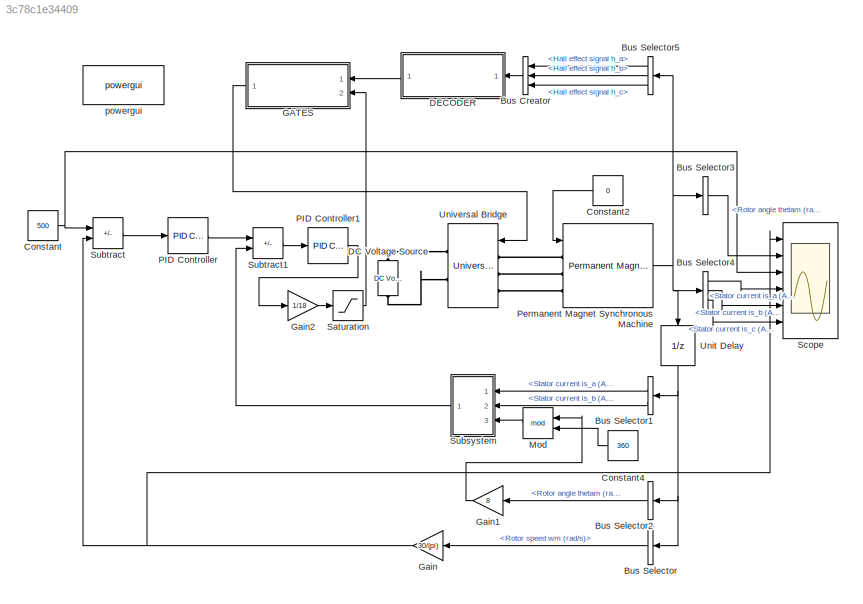
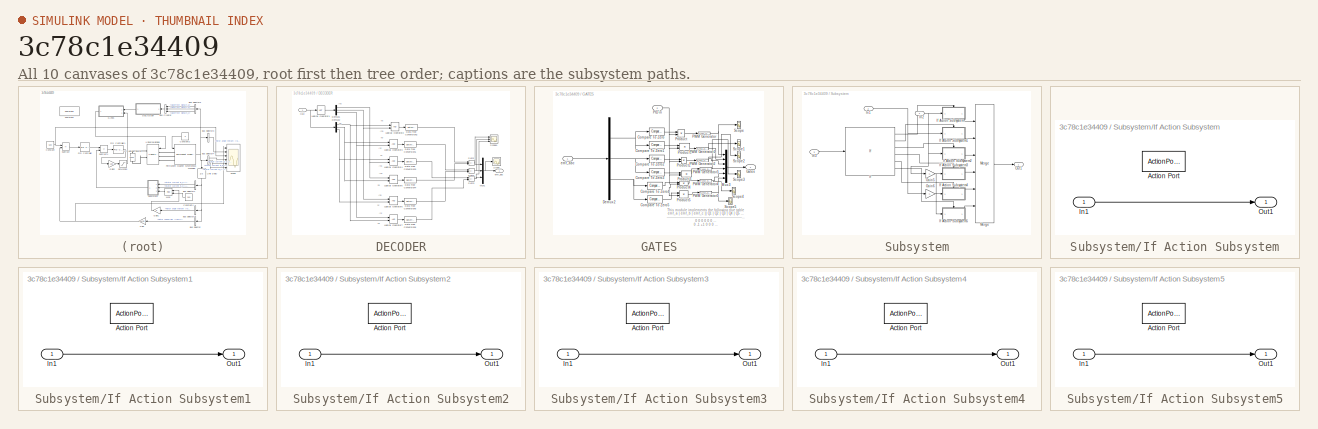
[diagram: thumbnail index - all 10 canvases of the model, root first then tree order]
MODEL slx_3c78c1e34409
KIND model
CONFIG AbsTol = auto
CONFIG EnableMultiTasking = off
CONFIG FixedStep = auto
CONFIG MaxStep = auto
CONFIG MinStep = auto
CONFIG RelTol = 1e-3
CONFIG SampleTimeConstraint = Unconstrained
CONFIG Solver = VariableStepAuto
CONFIG SolverName = VariableStepAuto
CONFIG StartTime = 0.0
CONFIG StopTime = 3
BLOCK [BusCreator] Bus Creator
  DisplayOption = bar
  InheritFromInputs = on
  Inputs = 3
  Ports = [3, 1]
BLOCK [BusSelector] Bus Selector
  OutputSignals = Rotor speed wm (rad/s)
  Ports = [1, 1]
BLOCK [BusSelector] Bus Selector1
  OutputSignals = Stator current is_a (A),Stator current is_b (A)
  Ports = [1, 2]
BLOCK [BusSelector] Bus Selector2
  OutputSignals = Rotor angle thetam (rad)
  Ports = [1, 1]
BLOCK [BusSelector] Bus Selector3
  OutputSignals = Rotor angle thetam (rad)
  Ports = [1, 1]
BLOCK [BusSelector] Bus Selector4
  OutputSignals = Stator current is_a (A),Stator current is_b (A),Stator current is_c (A)
  Ports = [1, 3]
BLOCK [BusSelector] Bus Selector5
  OutputSignals = Hall effect signal h_a,Hall effect signal h_b,Hall effect signal h_c
  Ports = [1, 3]
BLOCK [Constant] Constant
  Value = 500
BLOCK [Constant] Constant2
  Value = 0
BLOCK [Constant] Constant4
  Value = 360
BLOCK [Reference] DC Voltage Source  REF=powerlib/Electrical
Sources/DC Voltage Source
  Ports = [0, 0, 0, 0, 0, 1, 1]
  SourceBlock = powerlib/Electrical\nSources/DC Voltage Source
  SourceProductBaseCode = PS
  SourceType = DC Voltage Source
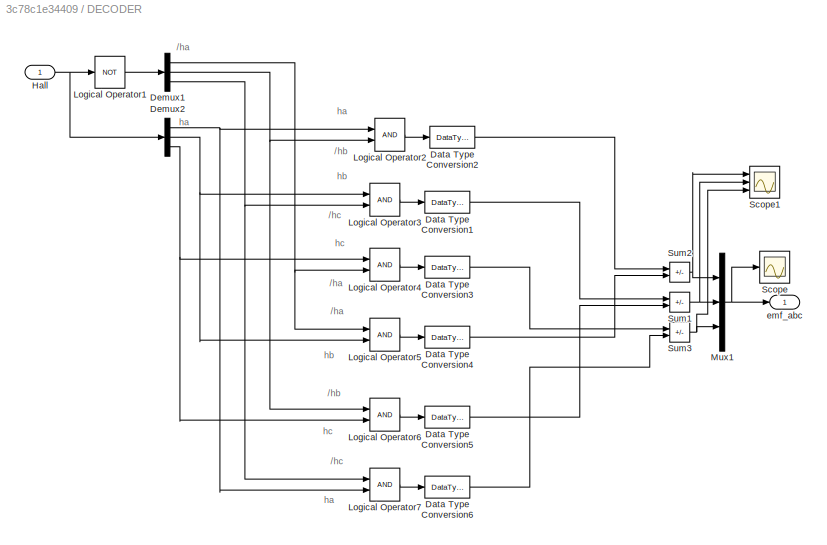
BLOCK [SubSystem] DECODER
  Ports = [1, 1]
  RequestExecContextInheritance = off
BLOCK [DataTypeConversion] DECODER/Data Type Conversion1
  RndMeth = Floor
  SaturateOnIntegerOverflow = off
BLOCK [DataTypeConversion] DECODER/Data Type Conversion2
  RndMeth = Floor
  SaturateOnIntegerOverflow = off
BLOCK [DataTypeConversion] DECODER/Data Type Conversion3
  RndMeth = Floor
  SaturateOnIntegerOverflow = off
BLOCK [DataTypeConversion] DECODER/Data Type Conversion4
  RndMeth = Floor
  SaturateOnIntegerOverflow = off
BLOCK [DataTypeConversion] DECODER/Data Type Conversion5
  RndMeth = Floor
  SaturateOnIntegerOverflow = off
BLOCK [DataTypeConversion] DECODER/Data Type Conversion6
  RndMeth = Floor
  SaturateOnIntegerOverflow = off
BLOCK [Demux] DECODER/Demux1
  Outputs = 3
  Ports = [1, 3]
BLOCK [Demux] DECODER/Demux2
  Outputs = 3
  Ports = [1, 3]
BLOCK [Inport] DECODER/Hall 
BLOCK [Logic] DECODER/Logical Operator1
  AllPortsSameDT = off
  Operator = NOT
  OutDataTypeStr = boolean
  Ports = [1, 1]
BLOCK [Logic] DECODER/Logical Operator2
  AllPortsSameDT = off
  OutDataTypeStr = boolean
  Ports = [2, 1]
BLOCK [Logic] DECODER/Logical Operator3
  AllPortsSameDT = off
  OutDataTypeStr = boolean
  Ports = [2, 1]
BLOCK [Logic] DECODER/Logical Operator4
  AllPortsSameDT = off
  OutDataTypeStr = boolean
  Ports = [2, 1]
BLOCK [Logic] DECODER/Logical Operator5
  AllPortsSameDT = off
  OutDataTypeStr = boolean
  Ports = [2, 1]
BLOCK [Logic] DECODER/Logical Operator6
  AllPortsSameDT = off
  OutDataTypeStr = boolean
  Ports = [2, 1]
BLOCK [Logic] DECODER/Logical Operator7
  AllPortsSameDT = off
  OutDataTypeStr = boolean
  Ports = [2, 1]
BLOCK [Mux] DECODER/Mux1
  DisplayOption = bar
  Inputs = 3
  Ports = [3, 1]
BLOCK [Scope] DECODER/Scope
  Floating = off
  NumInputPorts = 1
  Ports = [1]
  ScopeSpecificationString = Simulink.scopes.TimeScopeBlockCfg('CurrentConfiguration', extmgr.ConfigurationSet(extmgr.Configuration('Core','General UI',true),extmgr.Configuration('Core','Source UI',true),extmgr.Configuration('Sources','WiredSimulink',true,'DataLoggingVariableName','ScopeData4'),extmgr.Configuration('Visuals','Time Domain',true),extmgr.Configuration('Tools','Plot Navigation',true),extmgr.Configuration('Tools',...<+40ch>
BLOCK [Scope] DECODER/Scope1
  Floating = off
  NumInputPorts = 3
  Ports = [3]
  ScopeSpecificationString = Simulink.scopes.TimeScopeBlockCfg('CurrentConfiguration', extmgr.ConfigurationSet(extmgr.Configuration('Core','General UI',true),extmgr.Configuration('Core','Source UI',true),extmgr.Configuration('Sources','WiredSimulink',true,'DataLoggingVariableName','ScopeData5'),extmgr.Configuration('Visuals','Time Domain',true,'SerializedDisplays',{struct('MinYLimReal','-1.25','MaxYLimReal','1.25','YLabelReal...<+2618ch>
BLOCK [Sum] DECODER/Sum1
  IconShape = rectangular
  Inputs = +-
  OutDataTypeStr = double
  Ports = [2, 1]
BLOCK [Sum] DECODER/Sum2
  IconShape = rectangular
  Inputs = +-
  OutDataTypeStr = double
  Ports = [2, 1]
BLOCK [Sum] DECODER/Sum3
  IconShape = rectangular
  Inputs = +-
  OutDataTypeStr = double
  Ports = [2, 1]
BLOCK [Outport] DECODER/emf_abc
  VectorParamsAs1DForOutWhenUnconnected = off
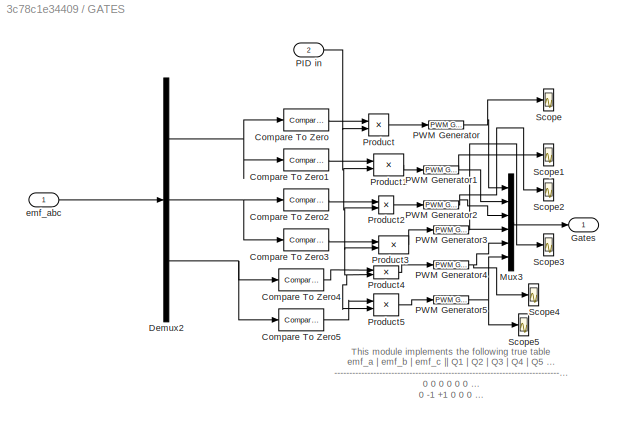
BLOCK [SubSystem] GATES
  Ports = [2, 1]
  RequestExecContextInheritance = off
BLOCK [Reference] GATES/Compare To Zero  REF=simulink/Logic and Bit
Operations/Compare
To Zero
  Ports = [1, 1]
  SourceBlock = simulink/Logic and Bit\nOperations/Compare\nTo Zero
  SourceProductBaseCode = SL
  SourceType = Compare To Zero
BLOCK [Reference] GATES/Compare To Zero1  REF=simulink/Logic and Bit
Operations/Compare
To Zero
  Ports = [1, 1]
  SourceBlock = simulink/Logic and Bit\nOperations/Compare\nTo Zero
  SourceProductBaseCode = SL
  SourceType = Compare To Zero
BLOCK [Reference] GATES/Compare To Zero2  REF=simulink/Logic and Bit
Operations/Compare
To Zero
  Ports = [1, 1]
  SourceBlock = simulink/Logic and Bit\nOperations/Compare\nTo Zero
  SourceProductBaseCode = SL
  SourceType = Compare To Zero
BLOCK [Reference] GATES/Compare To Zero3  REF=simulink/Logic and Bit
Operations/Compare
To Zero
  Ports = [1, 1]
  SourceBlock = simulink/Logic and Bit\nOperations/Compare\nTo Zero
  SourceProductBaseCode = SL
  SourceType = Compare To Zero
BLOCK [Reference] GATES/Compare To Zero4  REF=simulink/Logic and Bit
Operations/Compare
To Zero
  Ports = [1, 1]
  SourceBlock = simulink/Logic and Bit\nOperations/Compare\nTo Zero
  SourceProductBaseCode = SL
  SourceType = Compare To Zero
BLOCK [Reference] GATES/Compare To Zero5  REF=simulink/Logic and Bit
Operations/Compare
To Zero
  Ports = [1, 1]
  SourceBlock = simulink/Logic and Bit\nOperations/Compare\nTo Zero
  SourceProductBaseCode = SL
  SourceType = Compare To Zero
BLOCK [Demux] GATES/Demux2
  Outputs = 3
  Ports = [1, 3]
BLOCK [Outport] GATES/Gates
  VectorParamsAs1DForOutWhenUnconnected = off
BLOCK [Mux] GATES/Mux3
  DisplayOption = bar
  Inputs = 6
  Ports = [6, 1]
BLOCK [Inport] GATES/PID in 
  Port = 2
BLOCK [Reference] GATES/PWM Generator  REF=eePwmGenerator/PWM Generator
  Ports = [1, 1]
  SourceBlock = eePwmGenerator/PWM Generator
  SourceProductBaseCode = PS
  SourceType = PWM Generator
BLOCK [Reference] GATES/PWM Generator1  REF=eePwmGenerator/PWM Generator
  Ports = [1, 1]
  SourceBlock = eePwmGenerator/PWM Generator
  SourceProductBaseCode = PS
  SourceType = PWM Generator
BLOCK [Reference] GATES/PWM Generator2  REF=eePwmGenerator/PWM Generator
  Ports = [1, 1]
  SourceBlock = eePwmGenerator/PWM Generator
  SourceProductBaseCode = PS
  SourceType = PWM Generator
BLOCK [Reference] GATES/PWM Generator3  REF=eePwmGenerator/PWM Generator
  Ports = [1, 1]
  SourceBlock = eePwmGenerator/PWM Generator
  SourceProductBaseCode = PS
  SourceType = PWM Generator
BLOCK [Reference] GATES/PWM Generator4  REF=eePwmGenerator/PWM Generator
  Ports = [1, 1]
  SourceBlock = eePwmGenerator/PWM Generator
  SourceProductBaseCode = PS
  SourceType = PWM Generator
BLOCK [Reference] GATES/PWM Generator5  REF=eePwmGenerator/PWM Generator
  Ports = [1, 1]
  SourceBlock = eePwmGenerator/PWM Generator
  SourceProductBaseCode = PS
  SourceType = PWM Generator
BLOCK [Product] GATES/Product
  Ports = [2, 1]
BLOCK [Product] GATES/Product1
  Ports = [2, 1]
BLOCK [Product] GATES/Product2
  Ports = [2, 1]
BLOCK [Product] GATES/Product3
  Ports = [2, 1]
BLOCK [Product] GATES/Product4
  Ports = [2, 1]
BLOCK [Product] GATES/Product5
  Ports = [2, 1]
BLOCK [Scope] GATES/Scope
  Floating = off
  NumInputPorts = 1
  Ports = [1]
  ScopeSpecificationString = Simulink.scopes.TimeScopeBlockCfg('CurrentConfiguration', extmgr.ConfigurationSet(extmgr.Configuration('Core','General UI',true),extmgr.Configuration('Core','Source UI',true),extmgr.Configuration('Sources','WiredSimulink',true,'DataLoggingVariableName','ScopeData7'),extmgr.Configuration('Visuals','Time Domain',true,'SerializedDisplays',{struct('MinYLimReal','0.9249','MaxYLimReal','0.94838','YLabel...<+1413ch>
BLOCK [Scope] GATES/Scope1
  Floating = off
  NumInputPorts = 1
  Ports = [1]
  ScopeSpecificationString = Simulink.scopes.TimeScopeBlockCfg('CurrentConfiguration', extmgr.ConfigurationSet(extmgr.Configuration('Core','General UI',true),extmgr.Configuration('Core','Source UI',true),extmgr.Configuration('Sources','WiredSimulink',true,'DataLoggingVariableName','ScopeData2'),extmgr.Configuration('Visuals','Time Domain',true),extmgr.Configuration('Tools','Plot Navigation',true),extmgr.Configuration('Tools',...<+40ch>
BLOCK [Scope] GATES/Scope2
  Floating = off
  NumInputPorts = 1
  Ports = [1]
  ScopeSpecificationString = Simulink.scopes.TimeScopeBlockCfg('CurrentConfiguration', extmgr.ConfigurationSet(extmgr.Configuration('Core','General UI',true),extmgr.Configuration('Core','Source UI',true),extmgr.Configuration('Sources','WiredSimulink',true,'DataLoggingVariableName','ScopeData3'),extmgr.Configuration('Visuals','Time Domain',true),extmgr.Configuration('Tools','Plot Navigation',true),extmgr.Configuration('Tools',...<+40ch>
BLOCK [Scope] GATES/Scope3
  Floating = off
  NumInputPorts = 1
  Ports = [1]
  ScopeSpecificationString = Simulink.scopes.TimeScopeBlockCfg('CurrentConfiguration', extmgr.ConfigurationSet(extmgr.Configuration('Core','General UI',true),extmgr.Configuration('Core','Source UI',true),extmgr.Configuration('Sources','WiredSimulink',true,'DataLoggingVariableName','ScopeData4'),extmgr.Configuration('Visuals','Time Domain',true),extmgr.Configuration('Tools','Plot Navigation',true),extmgr.Configuration('Tools',...<+40ch>
BLOCK [Scope] GATES/Scope4
  Floating = off
  NumInputPorts = 1
  Ports = [1]
  ScopeSpecificationString = Simulink.scopes.TimeScopeBlockCfg('CurrentConfiguration', extmgr.ConfigurationSet(extmgr.Configuration('Core','General UI',true),extmgr.Configuration('Core','Source UI',true),extmgr.Configuration('Sources','WiredSimulink',true,'DataLoggingVariableName','ScopeData5'),extmgr.Configuration('Visuals','Time Domain',true),extmgr.Configuration('Tools','Plot Navigation',true),extmgr.Configuration('Tools',...<+40ch>
BLOCK [Scope] GATES/Scope5
  Floating = off
  NumInputPorts = 1
  Ports = [1]
  ScopeSpecificationString = Simulink.scopes.TimeScopeBlockCfg('CurrentConfiguration', extmgr.ConfigurationSet(extmgr.Configuration('Core','General UI',true),extmgr.Configuration('Core','Source UI',true),extmgr.Configuration('Sources','WiredSimulink',true,'DataLoggingVariableName','ScopeData6'),extmgr.Configuration('Visuals','Time Domain',true),extmgr.Configuration('Tools','Plot Navigation',true),extmgr.Configuration('Tools',...<+40ch>
BLOCK [Inport] GATES/emf_abc 
BLOCK [Gain] Gain
  Gain = 30/(pi)
BLOCK [Gain] Gain1
  Gain = 8
BLOCK [Gain] Gain2
  Gain = 1/18
BLOCK [Math] Mod
  Operator = mod
  Ports = [2, 1]
BLOCK [Reference] PID Controller  REF=simulink/Continuous/PID Controller
  Ports = [1, 1]
  SourceBlock = simulink/Continuous/PID Controller
  SourceProductBaseCode = SL
  SourceType = PID 1dof
BLOCK [Reference] PID Controller1  REF=simulink/Continuous/PID Controller
  Ports = [1, 1]
  SourceBlock = simulink/Continuous/PID Controller
  SourceProductBaseCode = SL
  SourceType = PID 1dof
BLOCK [Reference] Permanent Magnet Synchronous Machine  REF=powerlib/Machines/Permanent Magnet
Synchronous Machine
  Ports = [1, 1, 0, 0, 0, 3]
  SourceBlock = powerlib/Machines/Permanent Magnet\nSynchronous Machine
  SourceProductBaseCode = PS
  SourceType = Permanent Magnet Synchronous Machine
BLOCK [Saturate] Saturation
  LowerLimit = 0
  UpperLimit = 1
BLOCK [Scope] Scope
  Floating = off
  NumInputPorts = 6
  Ports = [6]
  ScopeSpecificationString = Simulink.scopes.TimeScopeBlockCfg('CurrentConfiguration', extmgr.ConfigurationSet(extmgr.Configuration('Core','General UI',true),extmgr.Configuration('Core','Source UI',true),extmgr.Configuration('Sources','WiredSimulink',true),extmgr.Configuration('Visuals','Time Domain',true,'SerializedDisplays',{struct('MinYLimReal','-70.26612','MaxYLimReal','632.39508','YLabelReal','','MinYLimMag','0.00000','M...<+5281ch>
BLOCK [SubSystem] Subsystem
  Ports = [3, 1]
  RequestExecContextInheritance = off
BLOCK [Gain] Subsystem/Gain5
  Gain = -1
BLOCK [Gain] Subsystem/Gain6
  Gain = -1
BLOCK [If] Subsystem/If
  ElseIfExpressions = u1 >= 60 & u1 < 120, u1 >= 120 & u1 < 180, u1 >= 180 & u1 < 240, u1 >= 240 & u1 < 300
  IfExpression = u1 >= 0 & u1 < 60
  Ports = [1, 6]
BLOCK [SubSystem] Subsystem/If Action Subsystem
  Ports = [1, 1, 0, 0, 0, 0, 0, 1]
  RequestExecContextInheritance = off
  TreatAsAtomicUnit = on
BLOCK [ActionPort] Subsystem/If Action Subsystem/Action Port
  ActionPortLabel = if(u1 >= 0 & u1 < 60)
BLOCK [Inport] Subsystem/If Action Subsystem/In1
BLOCK [Outport] Subsystem/If Action Subsystem/Out1
BLOCK [SubSystem] Subsystem/If Action Subsystem1
  Ports = [1, 1, 0, 0, 0, 0, 0, 1]
  RequestExecContextInheritance = off
  TreatAsAtomicUnit = on
BLOCK [ActionPort] Subsystem/If Action Subsystem1/Action Port
  ActionPortLabel = elseif(u1 >= 60 & u1 < 120)
BLOCK [Inport] Subsystem/If Action Subsystem1/In1
BLOCK [Outport] Subsystem/If Action Subsystem1/Out1
BLOCK [SubSystem] Subsystem/If Action Subsystem2
  Ports = [1, 1, 0, 0, 0, 0, 0, 1]
  RequestExecContextInheritance = off
  TreatAsAtomicUnit = on
BLOCK [ActionPort] Subsystem/If Action Subsystem2/Action Port
  ActionPortLabel = elseif( u1 >= 120 & u1 < 180)
BLOCK [Inport] Subsystem/If Action Subsystem2/In1
BLOCK [Outport] Subsystem/If Action Subsystem2/Out1
BLOCK [SubSystem] Subsystem/If Action Subsystem3
  Ports = [1, 1, 0, 0, 0, 0, 0, 1]
  RequestExecContextInheritance = off
  TreatAsAtomicUnit = on
BLOCK [ActionPort] Subsystem/If Action Subsystem3/Action Port
  ActionPortLabel = elseif( u1 >= 180 & u1 < 240)
BLOCK [Inport] Subsystem/If Action Subsystem3/In1
BLOCK [Outport] Subsystem/If Action Subsystem3/Out1
BLOCK [SubSystem] Subsystem/If Action Subsystem4
  Ports = [1, 1, 0, 0, 0, 0, 0, 1]
  RequestExecContextInheritance = off
  TreatAsAtomicUnit = on
BLOCK [ActionPort] Subsystem/If Action Subsystem4/Action Port
  ActionPortLabel = elseif( u1 >= 240 & u1 < 300)
BLOCK [Inport] Subsystem/If Action Subsystem4/In1
BLOCK [Outport] Subsystem/If Action Subsystem4/Out1
BLOCK [SubSystem] Subsystem/If Action Subsystem5
  Ports = [1, 1, 0, 0, 0, 0, 0, 1]
  RequestExecContextInheritance = off
  TreatAsAtomicUnit = on
BLOCK [ActionPort] Subsystem/If Action Subsystem5/Action Port
  ActionPortLabel = else
BLOCK [Inport] Subsystem/If Action Subsystem5/In1
BLOCK [Outport] Subsystem/If Action Subsystem5/Out1
BLOCK [Inport] Subsystem/In1
  Port = 2
BLOCK [Inport] Subsystem/In2
BLOCK [Inport] Subsystem/In3
  Port = 3
BLOCK [Merge] Subsystem/Merge
  Inputs = 6
  Ports = [6, 1]
BLOCK [Outport] Subsystem/Out1
BLOCK [Sum] Subtract
  IconShape = rectangular
  Inputs = +-
  Ports = [2, 1]
BLOCK [Sum] Subtract1
  IconShape = rectangular
  Inputs = +-
  Ports = [2, 1]
BLOCK [UnitDelay] Unit Delay
  HasFrameUpgradeWarning = on
  SampleTime = 1e-6
BLOCK [Reference] Universal Bridge  REF=powerlib/Power
Electronics/Universal Bridge
  Ports = [1, 0, 0, 0, 0, 3, 2]
  SourceBlock = powerlib/Power\nElectronics/Universal Bridge
  SourceProductBaseCode = PS
  SourceType = Universal Bridge
BLOCK [Reference] powergui  REF=powerlib/powergui
  Ports = []
  Priority = 1
  SourceBlock = powerlib/powergui
  SourceProductBaseCode = PS
  SourceType = PSB option menu block
ANNOTATION DECODER: /ha
ANNOTATION DECODER: /hb
ANNOTATION DECODER: /hc
ANNOTATION DECODER: ha
ANNOTATION DECODER: hb
ANNOTATION DECODER: hc
ANNOTATION GATES: This module implements the following true table emf_a | emf_b | emf_c || Q1 | Q2 | Q3 | Q4 | Q5 | Q6 ------------------------------------------------------------------------------------------------------------------ 0 0 0 0 0 0 0 0 0 0 -1 +1 0 0 0 1 1 0 -1 +1 0 0 1 1 0 0 0 -1 0 +1 0 1 0 0 1 0 +1 0 -1 1 0 0 0 0 1 +1 -1 0 1 0 0 1 0 0 0 +1 -1 0 0 1 0 0 1 0 0 0 0 0 0 0 0 0
LINE Bus Creator:1 -> DECODER:1
LINE Bus Selector1:1 -> Subsystem:1
LINE Bus Selector1:2 -> Subsystem:2
LINE Bus Selector2:1 -> Gain1:1
LINE Bus Selector3:1 -> Scope:2
LINE Bus Selector4:1 -> Scope:4
LINE Bus Selector4:2 -> Scope:5
LINE Bus Selector4:3 -> Scope:6
LINE Bus Selector5:1 -> Bus Creator:1
LINE Bus Selector5:2 -> Bus Creator:2
LINE Bus Selector5:3 -> Bus Creator:3
LINE Bus Selector:1 -> Gain:1
LINE Constant2:1 -> Permanent Magnet Synchronous Machine:1
LINE Constant4:1 -> Mod:2
NET Constant:1 -> Scope:3, Subtract:1
LINE DECODER/Data Type Conversion1:1 -> DECODER/Sum1:1
LINE DECODER/Data Type Conversion2:1 -> DECODER/Sum2:1
LINE DECODER/Data Type Conversion3:1 -> DECODER/Sum3:1
LINE DECODER/Data Type Conversion4:1 -> DECODER/Sum2:2
LINE DECODER/Data Type Conversion5:1 -> DECODER/Sum1:2
LINE DECODER/Data Type Conversion6:1 -> DECODER/Sum3:2
NET DECODER/Demux1:1 -> DECODER/Logical Operator4:2, DECODER/Logical Operator5:1
NET DECODER/Demux1:2 -> DECODER/Logical Operator2:2, DECODER/Logical Operator6:1
NET DECODER/Demux1:3 -> DECODER/Logical Operator3:2, DECODER/Logical Operator7:1
NET DECODER/Demux2:1 -> DECODER/Logical Operator2:1, DECODER/Logical Operator7:2
NET DECODER/Demux2:2 -> DECODER/Logical Operator3:1, DECODER/Logical Operator5:2
NET DECODER/Demux2:3 -> DECODER/Logical Operator4:1, DECODER/Logical Operator6:2
NET DECODER/Hall :1 -> DECODER/Demux2:1, DECODER/Logical Operator1:1
LINE DECODER/Logical Operator1:1 -> DECODER/Demux1:1
LINE DECODER/Logical Operator2:1 -> DECODER/Data Type Conversion2:1
LINE DECODER/Logical Operator3:1 -> DECODER/Data Type Conversion1:1
LINE DECODER/Logical Operator4:1 -> DECODER/Data Type Conversion3:1
LINE DECODER/Logical Operator5:1 -> DECODER/Data Type Conversion4:1
LINE DECODER/Logical Operator6:1 -> DECODER/Data Type Conversion5:1
LINE DECODER/Logical Operator7:1 -> DECODER/Data Type Conversion6:1
NET DECODER/Mux1:1 -> DECODER/Scope:1, DECODER/emf_abc:1
NET DECODER/Sum1:1 -> DECODER/Mux1:2, DECODER/Scope1:2
NET DECODER/Sum2:1 -> DECODER/Mux1:1, DECODER/Scope1:1
NET DECODER/Sum3:1 -> DECODER/Mux1:3, DECODER/Scope1:3
LINE DECODER:1 -> GATES:1
LINE GATES/Compare To Zero1:1 -> GATES/Product1:1
LINE GATES/Compare To Zero2:1 -> GATES/Product2:1
LINE GATES/Compare To Zero3:1 -> GATES/Product3:1
LINE GATES/Compare To Zero4:1 -> GATES/Product4:1
LINE GATES/Compare To Zero5:1 -> GATES/Product5:1
LINE GATES/Compare To Zero:1 -> GATES/Product:1
NET GATES/Demux2:1 -> GATES/Compare To Zero1:1, GATES/Compare To Zero:1
NET GATES/Demux2:2 -> GATES/Compare To Zero2:1, GATES/Compare To Zero3:1
NET GATES/Demux2:3 -> GATES/Compare To Zero4:1, GATES/Compare To Zero5:1
LINE GATES/Mux3:1 -> GATES/Gates:1
NET GATES/PID in :1 -> GATES/Product1:2, GATES/Product2:2, GATES/Product3:2, GATES/Product4:2, GATES/Product5:2, GATES/Product:2
NET GATES/PWM Generator1:1 -> GATES/Mux3:2, GATES/Scope1:1
NET GATES/PWM Generator2:1 -> GATES/Mux3:3, GATES/Scope2:1
NET GATES/PWM Generator3:1 -> GATES/Mux3:4, GATES/Scope3:1
NET GATES/PWM Generator4:1 -> GATES/Mux3:5, GATES/Scope4:1
NET GATES/PWM Generator5:1 -> GATES/Mux3:6, GATES/Scope5:1
NET GATES/PWM Generator:1 -> GATES/Mux3:1, GATES/Scope:1
LINE GATES/Product1:1 -> GATES/PWM Generator1:1
LINE GATES/Product2:1 -> GATES/PWM Generator2:1
LINE GATES/Product3:1 -> GATES/PWM Generator3:1
LINE GATES/Product4:1 -> GATES/PWM Generator4:1
LINE GATES/Product5:1 -> GATES/PWM Generator5:1
LINE GATES/Product:1 -> GATES/PWM Generator:1
LINE GATES/emf_abc :1 -> GATES/Demux2:1
LINE GATES:1 -> Universal Bridge:1
LINE Gain1:1 -> Mod:1
LINE Gain2:1 -> Saturation:1
NET Gain:1 -> Scope:1, Subtract:2
LINE Mod:1 -> Subsystem:3
LINE PID Controller1:1 -> Gain2:1
LINE PID Controller:1 -> Subtract1:1
NET Permanent Magnet Synchronous Machine:1 -> Bus Selector3:1, Bus Selector4:1, Bus Selector5:1, Unit Delay:1
LINE Saturation:1 -> GATES:2
NET Subsystem/Gain5:1 -> Subsystem/If Action Subsystem3:1, Subsystem/If Action Subsystem5:1
LINE Subsystem/Gain6:1 -> Subsystem/If Action Subsystem4:1
LINE Subsystem/If Action Subsystem/In1:1 -> Subsystem/If Action Subsystem/Out1:1
LINE Subsystem/If Action Subsystem1/In1:1 -> Subsystem/If Action Subsystem1/Out1:1
LINE Subsystem/If Action Subsystem1:1 -> Subsystem/Merge:2
LINE Subsystem/If Action Subsystem2/In1:1 -> Subsystem/If Action Subsystem2/Out1:1
LINE Subsystem/If Action Subsystem2:1 -> Subsystem/Merge:3
LINE Subsystem/If Action Subsystem3/In1:1 -> Subsystem/If Action Subsystem3/Out1:1
LINE Subsystem/If Action Subsystem3:1 -> Subsystem/Merge:4
LINE Subsystem/If Action Subsystem4/In1:1 -> Subsystem/If Action Subsystem4/Out1:1
LINE Subsystem/If Action Subsystem4:1 -> Subsystem/Merge:5
LINE Subsystem/If Action Subsystem5/In1:1 -> Subsystem/If Action Subsystem5/Out1:1
LINE Subsystem/If Action Subsystem5:1 -> Subsystem/Merge:6
LINE Subsystem/If Action Subsystem:1 -> Subsystem/Merge:1
LINE Subsystem/If:1 -> Subsystem/If Action Subsystem:ifaction
LINE Subsystem/If:2 -> Subsystem/If Action Subsystem1:ifaction
LINE Subsystem/If:3 -> Subsystem/If Action Subsystem2:ifaction
LINE Subsystem/If:4 -> Subsystem/If Action Subsystem3:ifaction
LINE Subsystem/If:5 -> Subsystem/If Action Subsystem4:ifaction
LINE Subsystem/If:6 -> Subsystem/If Action Subsystem5:ifaction
NET Subsystem/In1:1 -> Subsystem/Gain6:1, Subsystem/If Action Subsystem1:1
NET Subsystem/In2:1 -> Subsystem/Gain5:1, Subsystem/If Action Subsystem2:1, Subsystem/If Action Subsystem:1
LINE Subsystem/In3:1 -> Subsystem/If:1
LINE Subsystem/Merge:1 -> Subsystem/Out1:1
LINE Subsystem:1 -> Subtract1:2
LINE Subtract1:1 -> PID Controller1:1
LINE Subtract:1 -> PID Controller:1
NET Unit Delay:1 -> Bus Selector1:1, Bus Selector2:1, Bus Selector:1
PLINE DC Voltage Source:LConn1 -- Universal Bridge:RConn2
PLINE DC Voltage Source:RConn1 -- Universal Bridge:RConn1
PLINE Permanent Magnet Synchronous Machine:LConn1 -- Universal Bridge:LConn1
PLINE Permanent Magnet Synchronous Machine:LConn2 -- Universal Bridge:LConn2
PLINE Permanent Magnet Synchronous Machine:LConn3 -- Universal Bridge:LConn3
note: NET lines group one-source signal fan-out (src -> all destinations, sorted); 1:1 wires keep LINE
